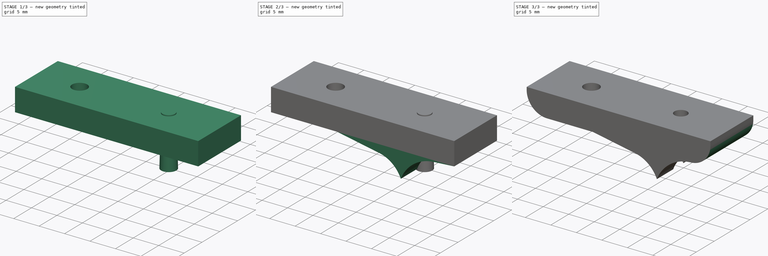
[diagram: build sequence overview — one tinted view per stage of 3, left to right]
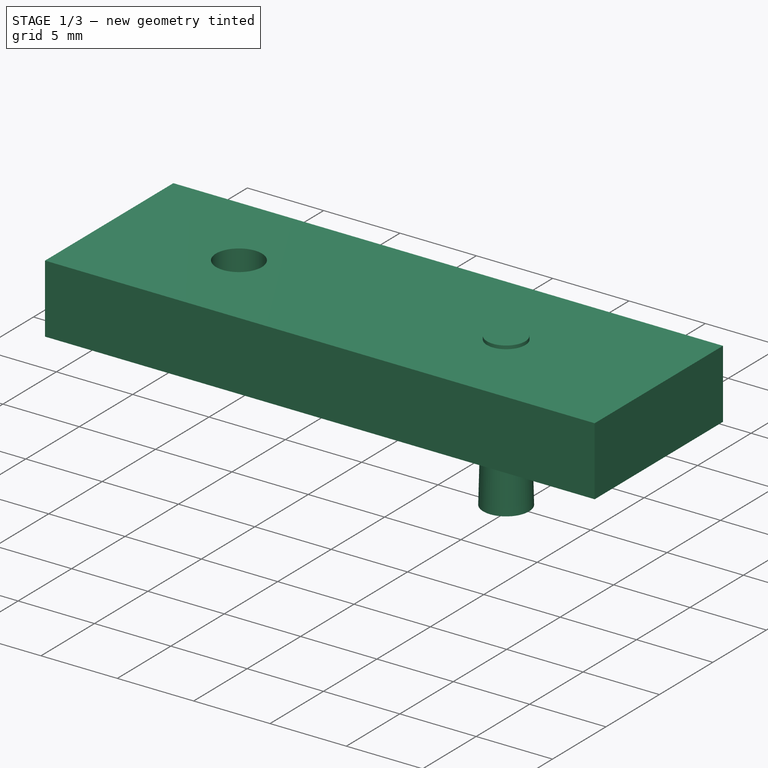
[diagram: stage 1 of 3 — iso view after this stage's code; geometry added in this stage tinted green]
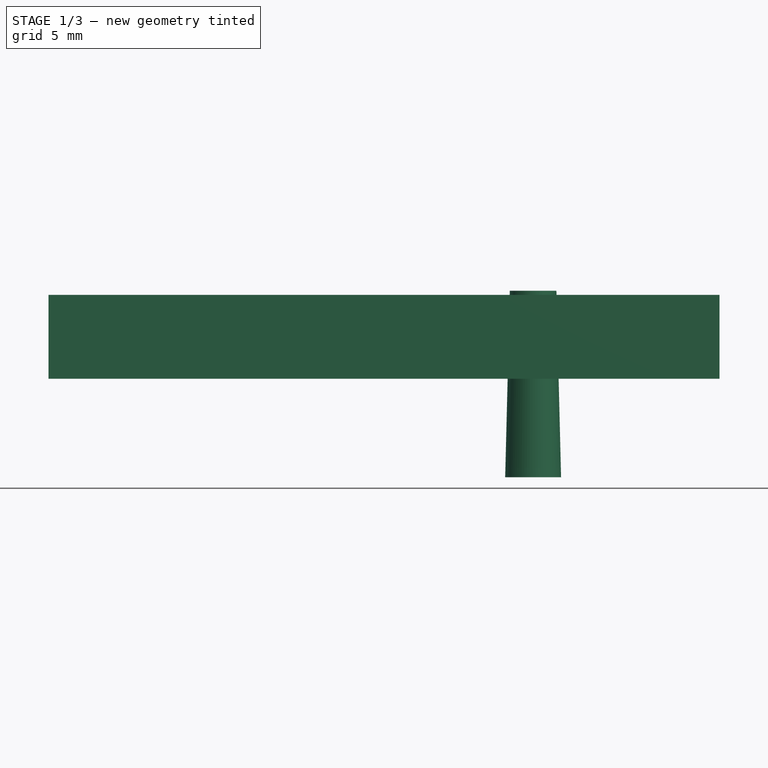
[diagram: stage 1 of 3 — front view after this stage's code; geometry added in this stage tinted green]
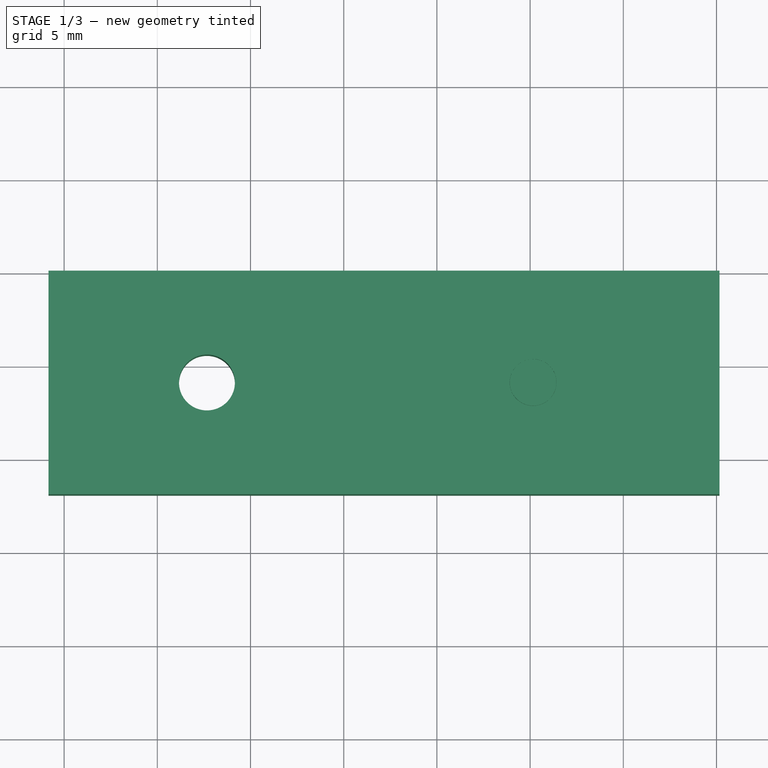
[diagram: stage 1 of 3 — top view after this stage's code; geometry added in this stage tinted green]
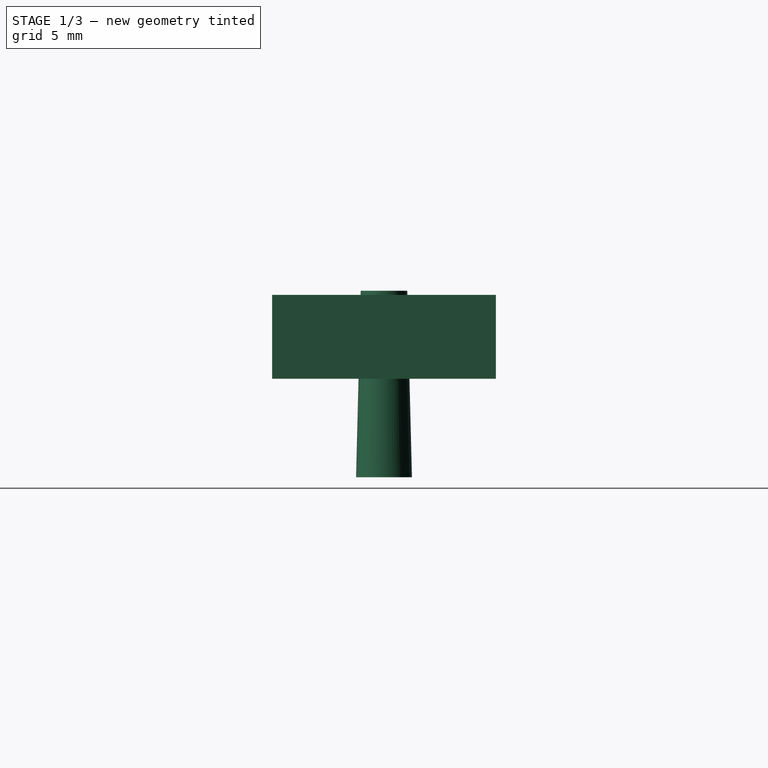
[diagram: stage 1 of 3 — right view after this stage's code; geometry added in this stage tinted green]
FCSTD DOCUMENT  (FreeCAD 0.16R6045 (Git))
Label: suplementomk8
License: All rights reserved
LicenseURL: http://en.wikipedia.org/wiki/All_rights_reserved
objects: Sketcher::SketchObject×4, PartDesign::Pad×2, PartDesign::Pocket×2, PartDesign::Fillet×2, Part::Cone×1, Part::Cut×1
note: 16 computed .brp shape members not serialized (recipe doc carries the construction recipe); baked Part::Feature solids carry a one-line shape summary decoded from their .brp

FEATURE [Sketcher::SketchObject] Sketch
  Placement = pos=(0,0,0) rot=(-1,0,0;4.71239rad)
  sketch-geometry (4):
    g0: LineSegment StartX=4.16142 StartY=3.5831 StartZ=0 EndX=40.1614 EndY=3.5831 EndZ=0
    g1: LineSegment StartX=40.1614 StartY=3.5831 StartZ=0 EndX=40.1614 EndY=8.0831 EndZ=0
    g2: LineSegment StartX=40.1614 StartY=8.0831 StartZ=0 EndX=4.16142 EndY=8.0831 EndZ=0
    g3: LineSegment StartX=4.16142 StartY=8.0831 StartZ=0 EndX=4.16142 EndY=3.5831 EndZ=0
  constraints (10):
    c: Horizontal(g0)
    c: Coincident(g0,g1)
    c: Vertical(g1)
    c: Coincident(g1,g2)
    c: Horizontal(g2)
    c: Coincident(g2,g3)
    c: Coincident(g3,g0)
    c: Vertical(g3)
    c: Distance(g1) = 4.5
    c: Distance(g2) = 36
FEATURE [PartDesign::Pad] Pad
  Length = 12
  Length2 = 100
  Placement = pos=(0,0,0) rot=(-1,0,0;4.71239rad)
  Sketch = -> Sketch
  Type = 0
FEATURE [Sketcher::SketchObject] Sketch001
  ExternalGeometry = -> [Pad]
  Placement = pos=(0,0,3.5831) rot=(1,0,0;3.14159rad)
  Support = -> Pad [Face1]
  sketch-geometry (5):
    g0: LineSegment [constr] StartX=30.1614 StartY=12 StartZ=0 EndX=30.1614 EndY=6 EndZ=0
    g1: LineSegment [constr] StartX=30.1614 StartY=6 StartZ=0 EndX=30.1614 EndY=0 EndZ=0
    g2: LineSegment [constr] StartX=30.1614 StartY=6 StartZ=0 EndX=12.6614 EndY=6 EndZ=0
    g3: Circle CenterX=30.1614 CenterY=6 CenterZ=0 NormalX=0 NormalY=0 NormalZ=1 Radius=1
    g4: Circle CenterX=12.6614 CenterY=6 CenterZ=0 NormalX=0 NormalY=0 NormalZ=1 Radius=1.5
  constraints (15):
    c: Vertical(g0)
    c: Coincident(g1,g0)
    c: PointOnObject(g1,g-4)
    c: Vertical(g1)
    c: PointOnObject(g0,g-3)
    c: Equal(g0,g1)
    c: Distance(g0,g-5) = 10
    c: PointOnObject(g2,g0)
    c: Horizontal(g2)
    c: Distance(g2) = 17.5
    c: Coincident(g3,g0)
    c: Radius(g3) = 1
    c: Coincident(g0,g2)
    c: Coincident(g4,g2)
    c: Radius(g4) = 1.5
FEATURE [PartDesign::Pocket] Pocket
  Length = 5
  Placement = pos=(0,0,0) rot=(-1,0,0;4.71239rad)
  Sketch = -> Sketch001
  Type = 0
FEATURE [Part::Cone] Cone  label="Cono"
  Angle = 360
  Height = 10
  Placement = pos=(30.1614,-6,-1.7) rot=(0,0,1;0rad)
  Radius1 = 1.5
  Radius2 = 1.25
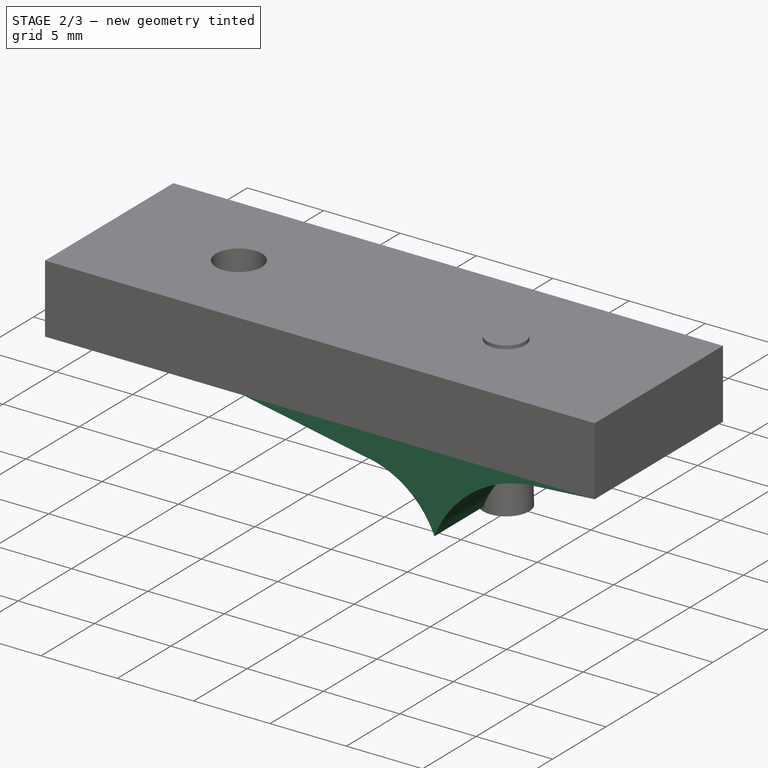
[diagram: stage 2 of 3 — iso view after this stage's code; geometry added in this stage tinted green]
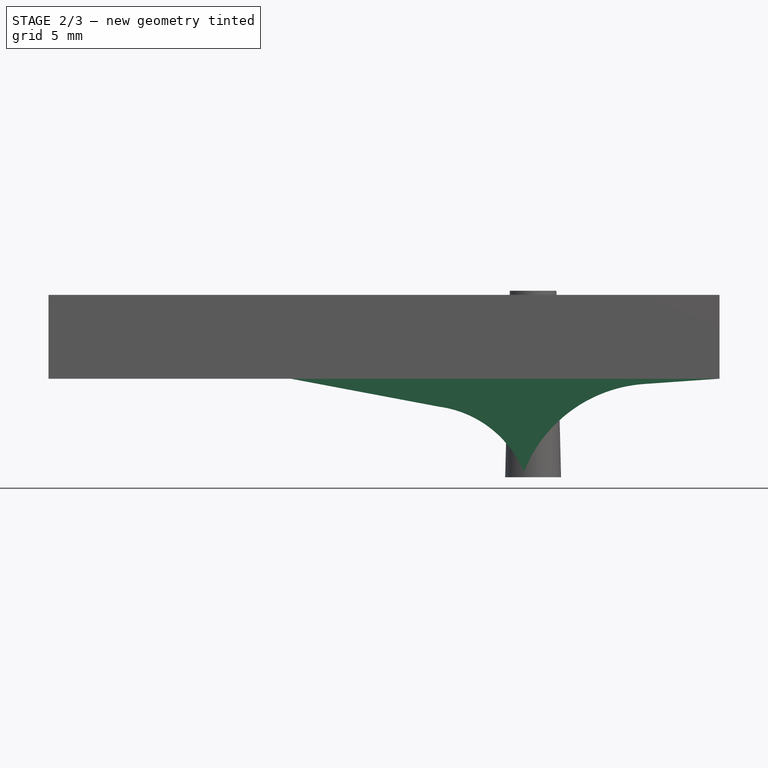
[diagram: stage 2 of 3 — front view after this stage's code; geometry added in this stage tinted green]
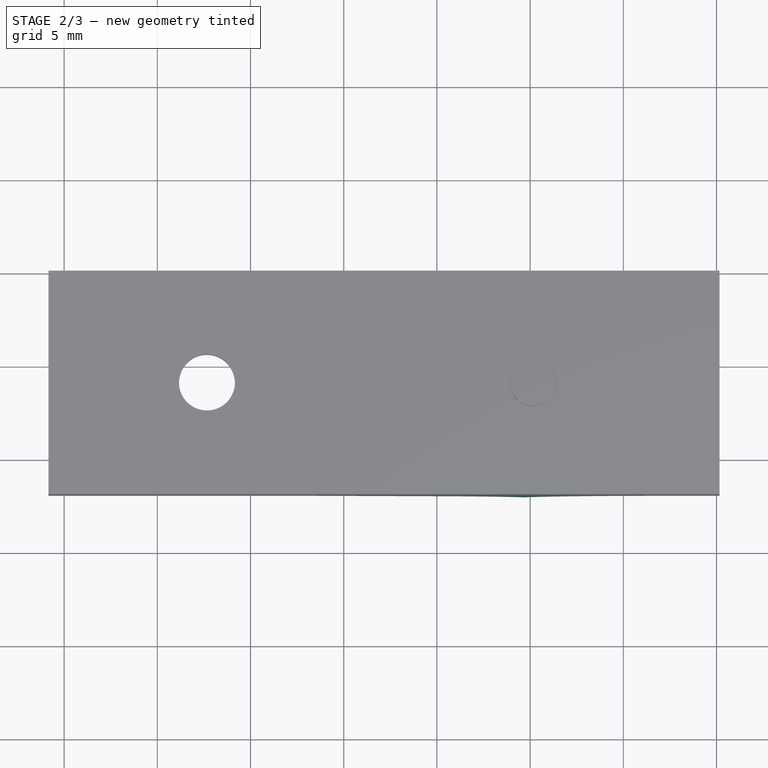
[diagram: stage 2 of 3 — top view after this stage's code; geometry added in this stage tinted green]
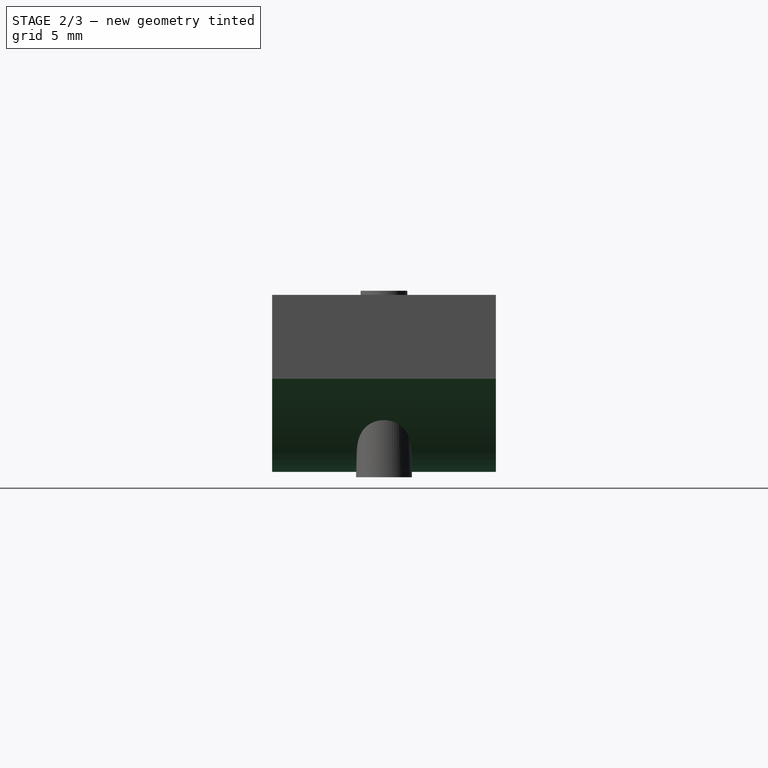
[diagram: stage 2 of 3 — right view after this stage's code; geometry added in this stage tinted green]
FEATURE [Sketcher::SketchObject] Sketch002
  ExternalGeometry = -> [Pocket]
  Placement = pos=(0,0,0) rot=(-1,0,0;1.5708rad)
  Support = -> Pocket [Face3]
  sketch-geometry (6):
    g0: LineSegment [constr] StartX=29.6614 StartY=-3.5831 StartZ=0 EndX=29.6614 EndY=1.4169 EndZ=0
    g1: ArcOfCircle CenterX=36.6329 CenterY=4.18241 CenterZ=0 NormalX=0 NormalY=0 NormalZ=1 Radius=7.5 StartAngle=3.51924 EndAngle=4.64246
    g2: ArcOfCircle CenterX=24.3485 CenterY=3.61597 CenterZ=0 NormalX=0 NormalY=0 NormalZ=1 Radius=5.75 StartAngle=4.84559 EndAngle=5.89074
    g3: LineSegment StartX=17.1614 StartY=-3.5831 StartZ=0 EndX=40.1614 EndY=-3.5831 EndZ=0
    g4: LineSegment StartX=17.1614 StartY=-3.5831 StartZ=0 EndX=25.1122 EndY=-2.0831 EndZ=0
    g5: LineSegment StartX=36.1089 StartY=-3.29926 StartZ=0 EndX=40.1614 EndY=-3.5831 EndZ=0
  constraints (17):
    c: PointOnObject(g0,g-3)
    c: Vertical(g0)
    c: Distance(g0,g-4) = 10.5
    c: Coincident(g1,g0)
    c: Coincident(g2,g0)
    c: Distance(g0) = 5
    c: PointOnObject(g3,g-3)
    c: Coincident(g4,g3)
    c: Coincident(g4,g2)
    c: Distance(g2,g-3) = 1.5
    c: Radius(g1) = 7.5
    c: Coincident(g5,g1)
    c: Coincident(g5,g3)
    c: Tangent(g5,g1)
    c: Radius(g2) = 5.75
    c: Distance(g3,g-3) = 13
    c: Coincident(g3,g-4)
FEATURE [PartDesign::Pad] Pad001
  Length = 12
  Length2 = 100
  Placement = pos=(0,0,0) rot=(-1,0,0;4.71239rad)
  Reversed = true
  Sketch = -> Sketch002
  Type = 0
FEATURE [Sketcher::SketchObject] Sketch003
  ExternalGeometry = -> [Pad001]
  Placement = pos=(0,0,3.5831) rot=(1,0,0;3.14159rad)
  Support = -> Pad001 [Face3]
  sketch-geometry (1):
    g0: Circle CenterX=12.6614 CenterY=6 CenterZ=0 NormalX=0 NormalY=0 NormalZ=1 Radius=4.5
  constraints (2):
    c: Coincident(g0,g-3)
    c: Radius(g0) = 4.5
FEATURE [PartDesign::Pocket] Pocket001
  Length = 3
  Placement = pos=(0,0,0) rot=(-1,0,0;4.71239rad)
  Sketch = -> Sketch003
  Type = 0
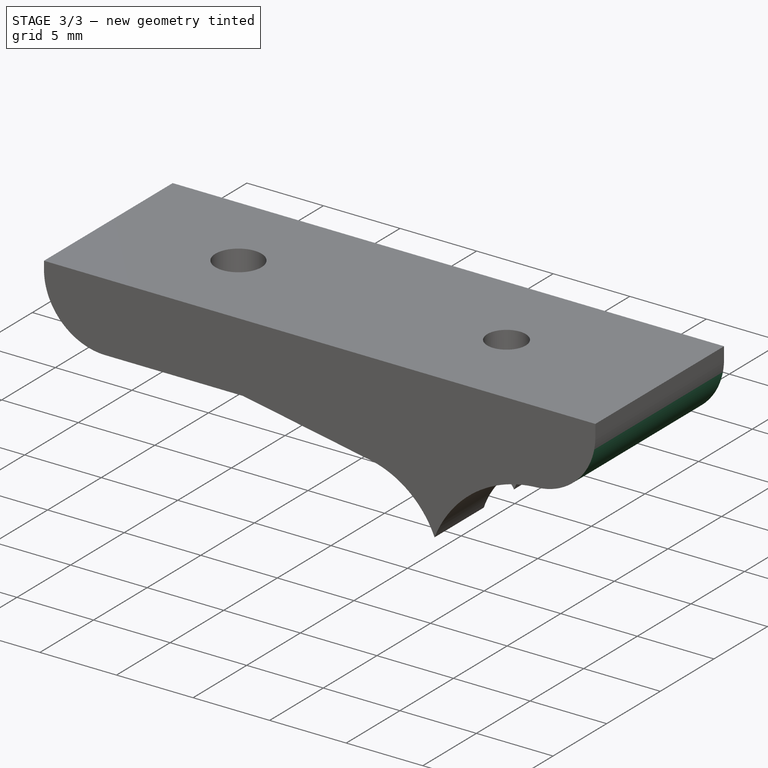
[diagram: stage 3 of 3 — iso view after this stage's code; geometry added in this stage tinted green]
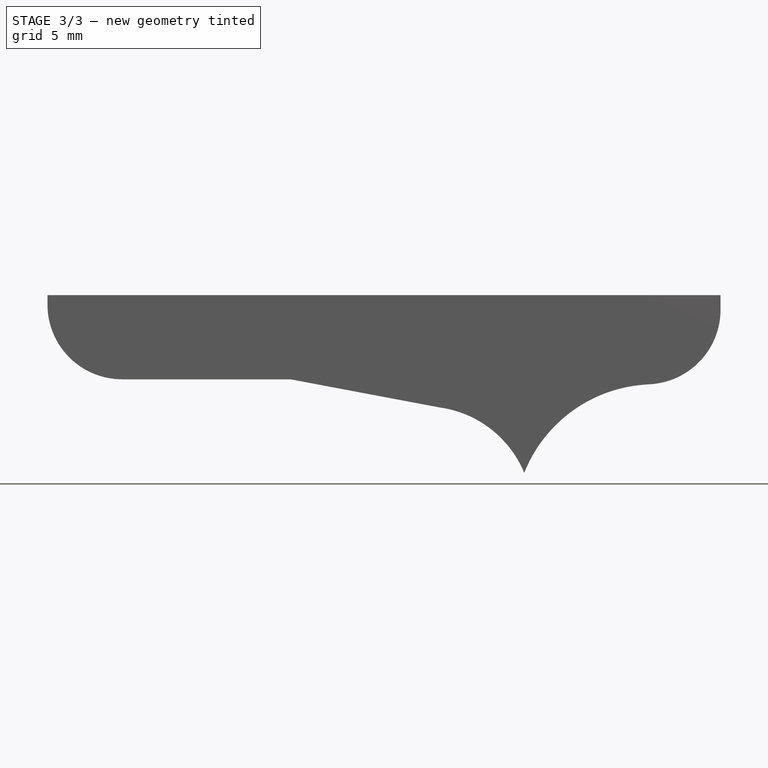
[diagram: stage 3 of 3 — front view after this stage's code; geometry added in this stage tinted green]
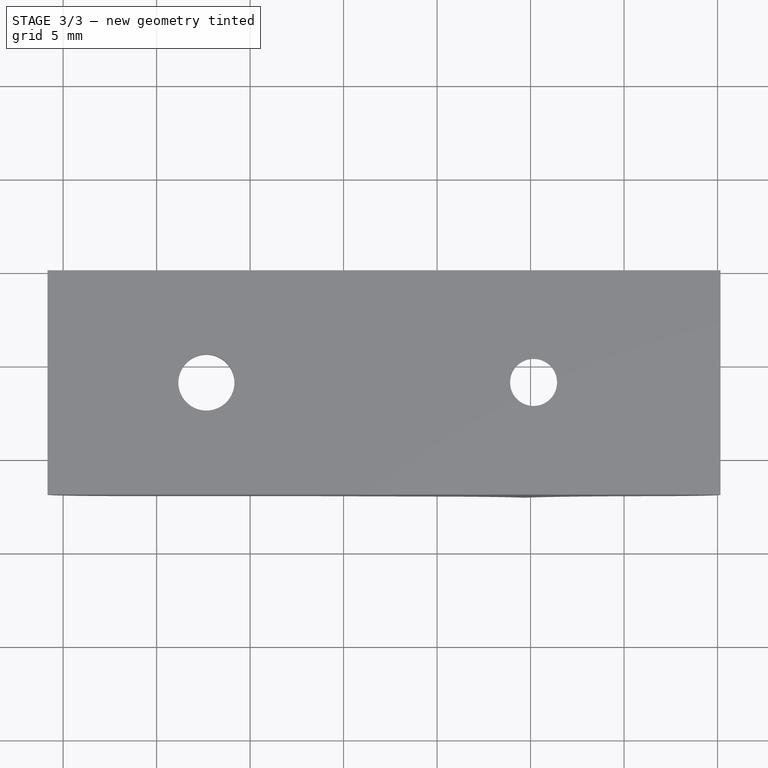
[diagram: stage 3 of 3 — top view after this stage's code; geometry added in this stage tinted green]
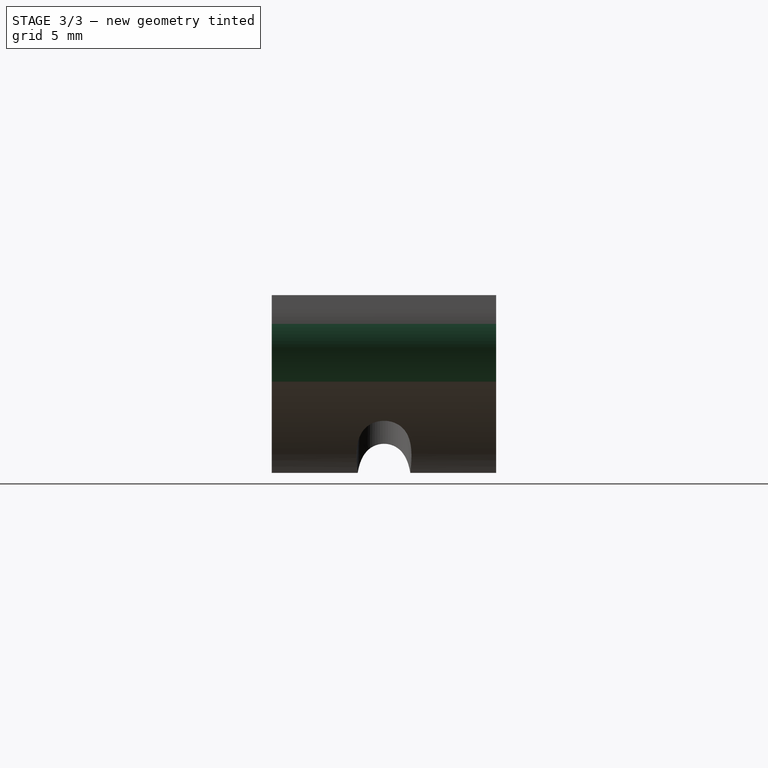
[diagram: stage 3 of 3 — right view after this stage's code; geometry added in this stage tinted green]
FEATURE [Part::Cut] Cut
  Base = -> Pocket001
  Tool = -> Cone
FEATURE [PartDesign::Fillet] Fillet
  Base = -> Cut [Edge19]
  Radius = 4
FEATURE [PartDesign::Fillet] Fillet001
  Base = -> Fillet [Edge19]
  Radius = 4
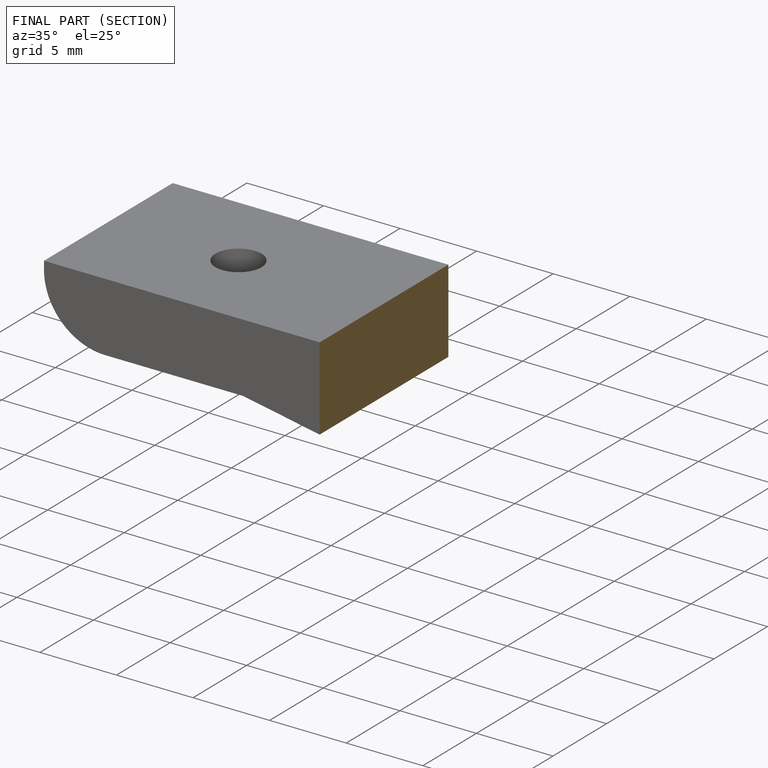
[diagram: finished part — half-section view (interior)]
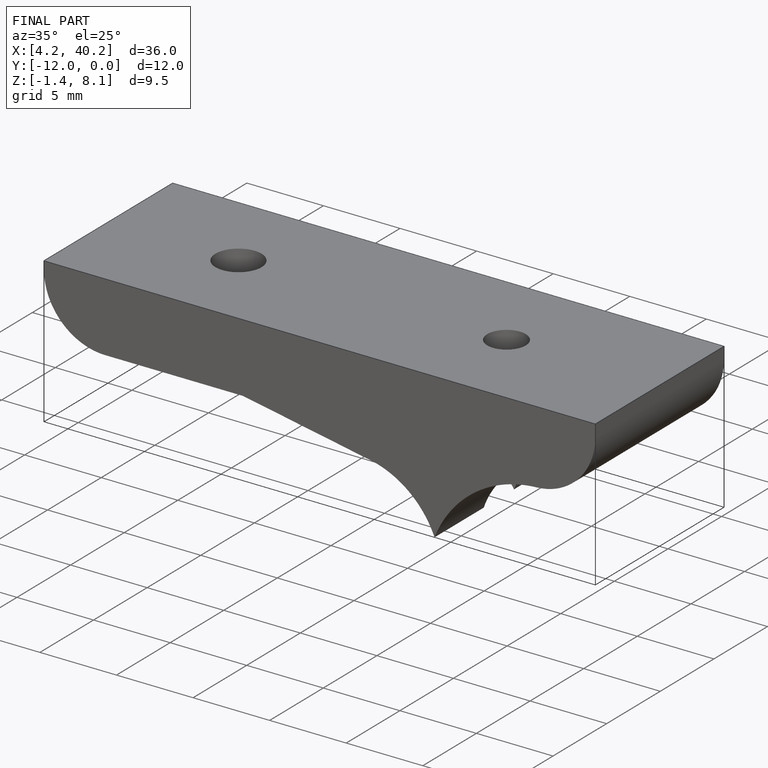
[diagram: finished part — iso view with bounding-box wireframe]
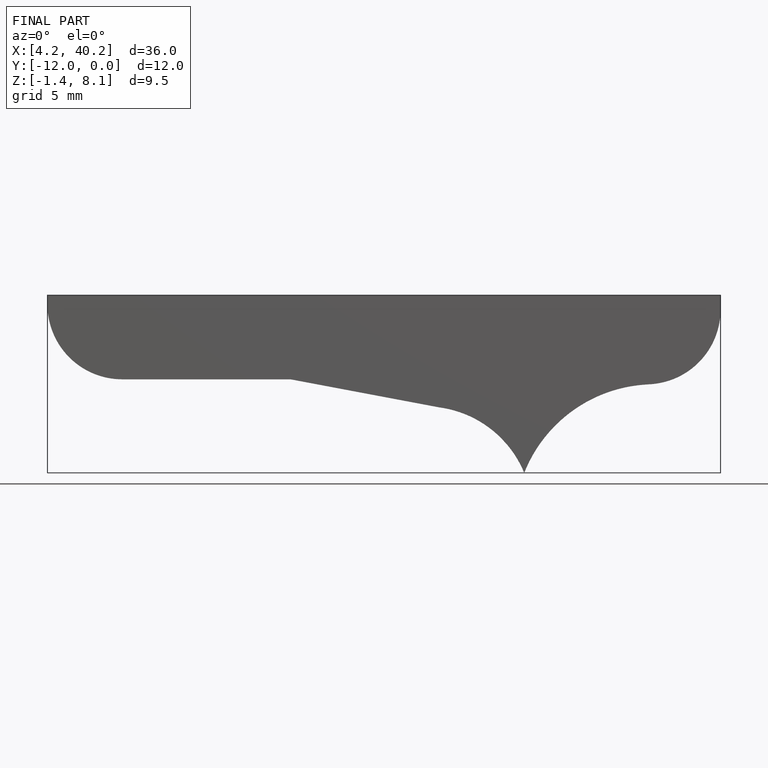
[diagram: finished part — front view with bounding-box wireframe]
